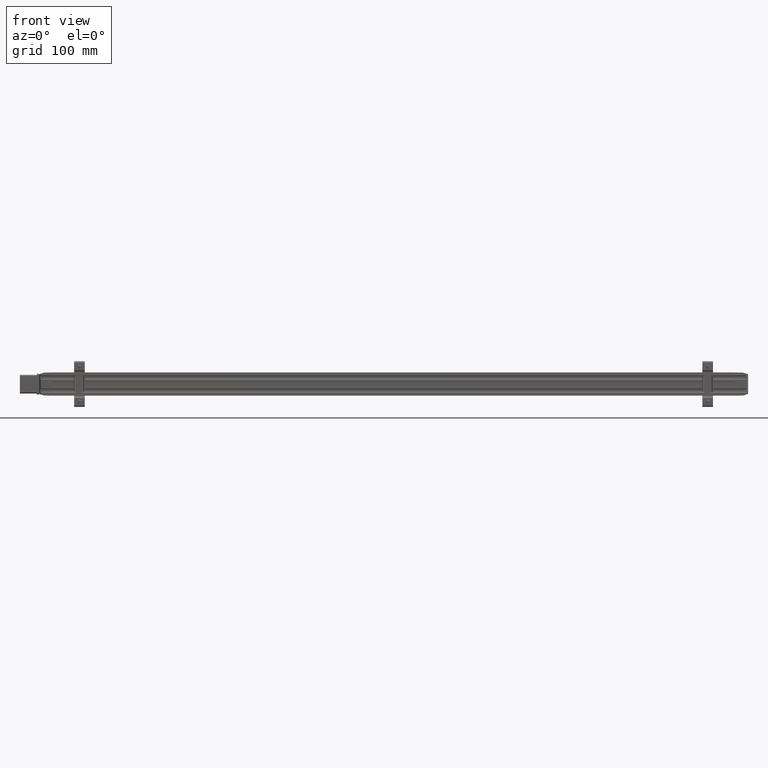
[diagram: clean part render]
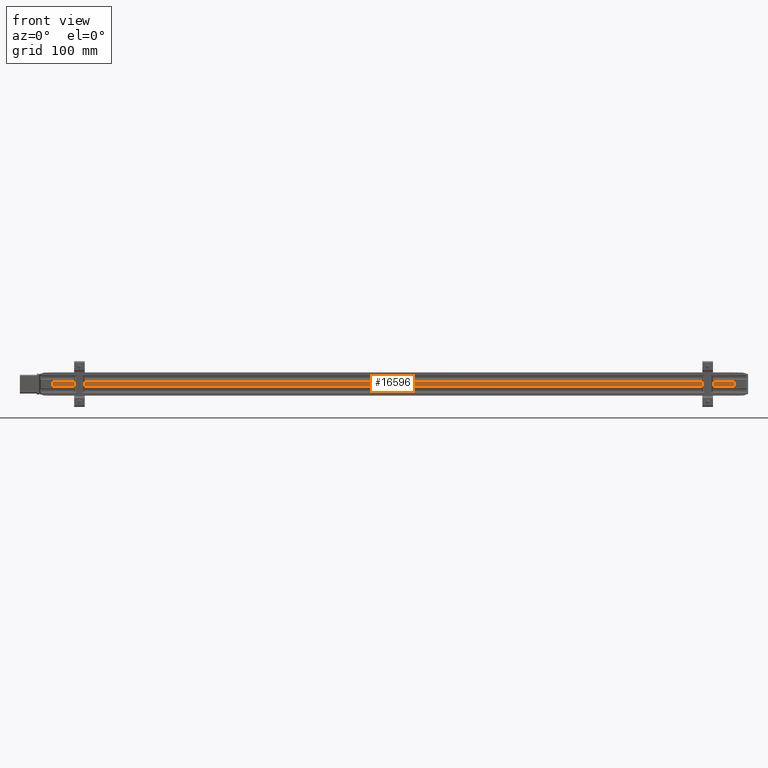
[diagram: same view with one face highlighted and labeled with its STEP entity id]
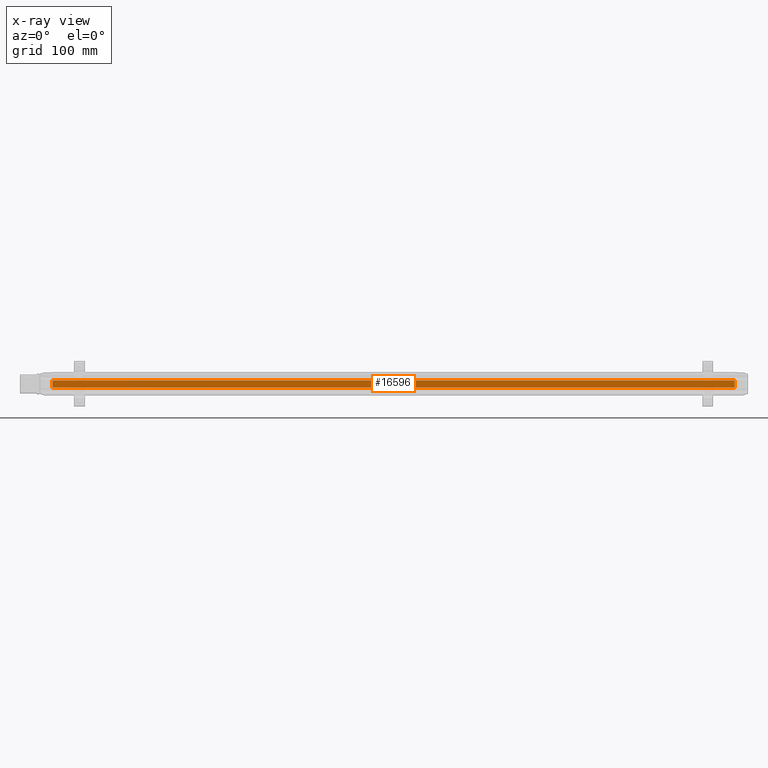
[diagram: x-ray of the same camera — body ghosted, the highlighted face saturated]
A machine part, front view. The second image highlights one B-rep face of the part: STEP entity #16596.
The next image is the same camera in x-ray: the body ghosted, the highlighted face saturated — about 0% of this face is hidden behind the body in this view.
In plain terms, the highlighted planar face has unit normal (0, 1, -0).
Its self-contained STEP definition (entity closure, byte-faithful):
#675 = VECTOR ( 'NONE', #45465, 39.37007874015748143 ) ;
#1478 = EDGE_CURVE ( 'NONE', #20247, #2041, #36486, .T. ) ;
#1643 = DIRECTION ( 'NONE',  ( 6.829894528618840264E-25, 1.000000000000000000, -1.717547996210339859E-16 ) ) ;
#2041 = VERTEX_POINT ( 'NONE', #44585 ) ;
#2872 = LINE ( 'NONE', #17034, #675 ) ;
#3295 = VECTOR ( 'NONE', #40740, 39.37007874015748143 ) ;
#5607 = CARTESIAN_POINT ( 'NONE',  ( -8.858267716535433323, 0.2367734739763779905, -0.4507201011023622139 ) ) ;
#5786 = DIRECTION ( 'NONE',  ( -1.341063538876892003E-28, -1.717547996210339859E-16, -1.000000000000000000 ) ) ;
#8769 = CARTESIAN_POINT ( 'NONE',  ( -8.858267716535433323, 0.2367734739763779905, -0.8483578963779528914 ) ) ;
#9126 = CARTESIAN_POINT ( 'NONE',  ( -8.858267716535433323, 0.2367734739763779905, -0.8483578963779528914 ) ) ;
#11345 = ORIENTED_EDGE ( 'NONE', *, *, #43738, .F. ) ;
#11884 = LINE ( 'NONE', #26531, #39716 ) ;
#12532 = FACE_OUTER_BOUND ( 'NONE', #14777, .T. ) ;
#12764 = CARTESIAN_POINT ( 'NONE',  ( -8.858267716535433323, 0.2367734739763779905, -0.8483578963779528914 ) ) ;
#14777 = EDGE_LOOP ( 'NONE', ( #44190, #11345, #40152, #40092 ) ) ;
#15895 = AXIS2_PLACEMENT_3D ( 'NONE', #12764, #1643, #5786 ) ;
#16596 = ADVANCED_FACE ( 'NONE', ( #12532 ), #30007, .F. ) ;
#17034 = CARTESIAN_POINT ( 'NONE',  ( -8.858267716535433323, 0.2367734739763779905, -0.4507201011023622139 ) ) ;
#17734 = VERTEX_POINT ( 'NONE', #44817 ) ;
#19545 = LINE ( 'NONE', #29797, #3295 ) ;
#20247 = VERTEX_POINT ( 'NONE', #9126 ) ;
#21492 = VERTEX_POINT ( 'NONE', #5607 ) ;
#24539 = EDGE_CURVE ( 'NONE', #20247, #21492, #11884, .T. ) ;
#26531 = CARTESIAN_POINT ( 'NONE',  ( -8.858267716535433323, 0.2367734739763779905, -0.8483578963779528914 ) ) ;
#29617 = VECTOR ( 'NONE', #40668, 39.37007874015748143 ) ;
#29797 = CARTESIAN_POINT ( 'NONE',  ( 29.33070866141732225, 0.2367734739763779905, -0.8483578963779528914 ) ) ;
#30007 = PLANE ( 'NONE',  #15895 ) ;
#32787 = EDGE_CURVE ( 'NONE', #2041, #17734, #19545, .T. ) ;
#36486 = LINE ( 'NONE', #8769, #29617 ) ;
#39716 = VECTOR ( 'NONE', #43356, 39.37007874015748143 ) ;
#40092 = ORIENTED_EDGE ( 'NONE', *, *, #1478, .T. ) ;
#40152 = ORIENTED_EDGE ( 'NONE', *, *, #24539, .F. ) ;
#40668 = DIRECTION ( 'NONE',  ( 1.000000000000000000, -6.829894528618840264E-25, -1.341063538875720069E-28 ) ) ;
#40740 = DIRECTION ( 'NONE',  ( 1.341063538876892003E-28, 1.717547996210339859E-16, 1.000000000000000000 ) ) ;
#43356 = DIRECTION ( 'NONE',  ( 1.341063538876892003E-28, 1.717547996210339859E-16, 1.000000000000000000 ) ) ;
#43738 = EDGE_CURVE ( 'NONE', #21492, #17734, #2872, .T. ) ;
#44190 = ORIENTED_EDGE ( 'NONE', *, *, #32787, .T. ) ;
#44585 = CARTESIAN_POINT ( 'NONE',  ( 29.33070866141732225, 0.2367734739763779905, -0.8483578963779528914 ) ) ;
#44817 = CARTESIAN_POINT ( 'NONE',  ( 29.33070866141732225, 0.2367734739763779905, -0.4507201011023622139 ) ) ;
#45465 = DIRECTION ( 'NONE',  ( 1.000000000000000000, -6.829894528618840264E-25, -1.341063538875720069E-28 ) ) ;